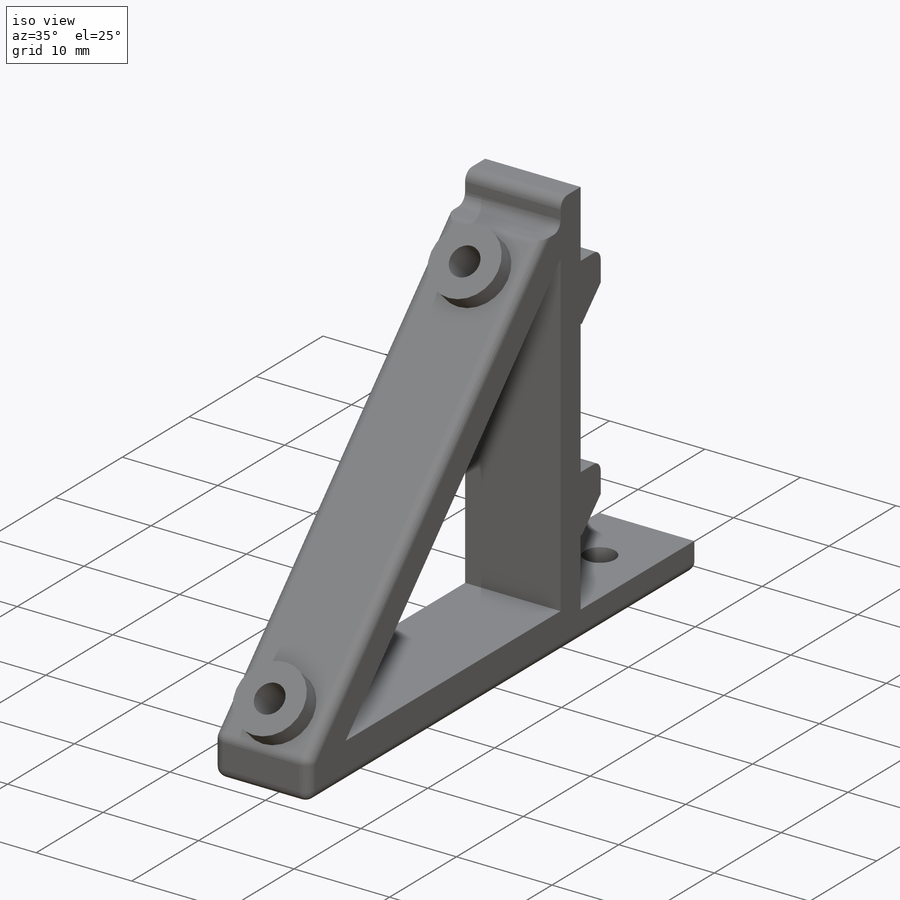
[diagram: iso view]
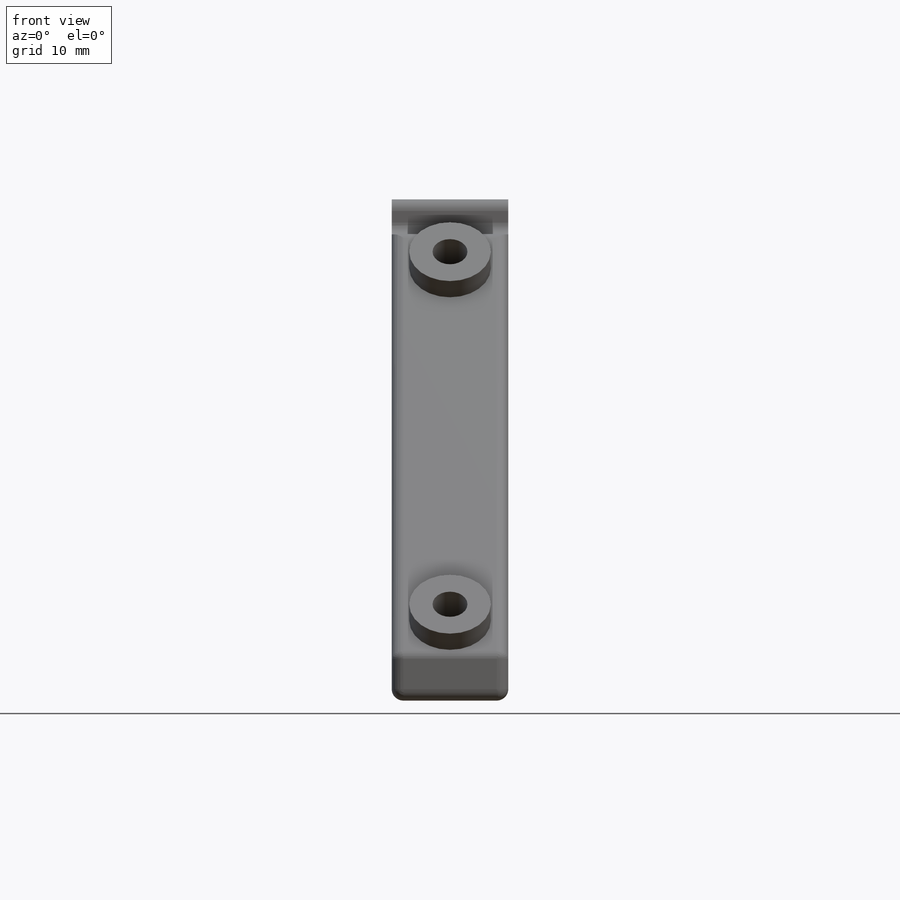
[diagram: front view]
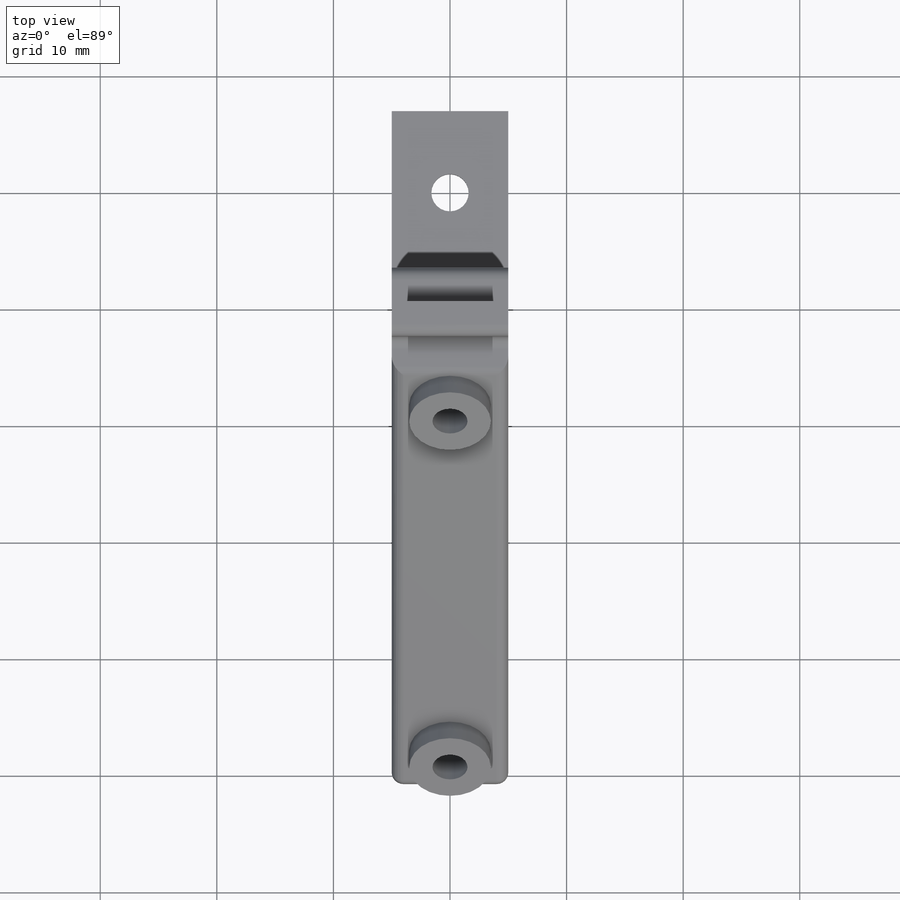
[diagram: top view]
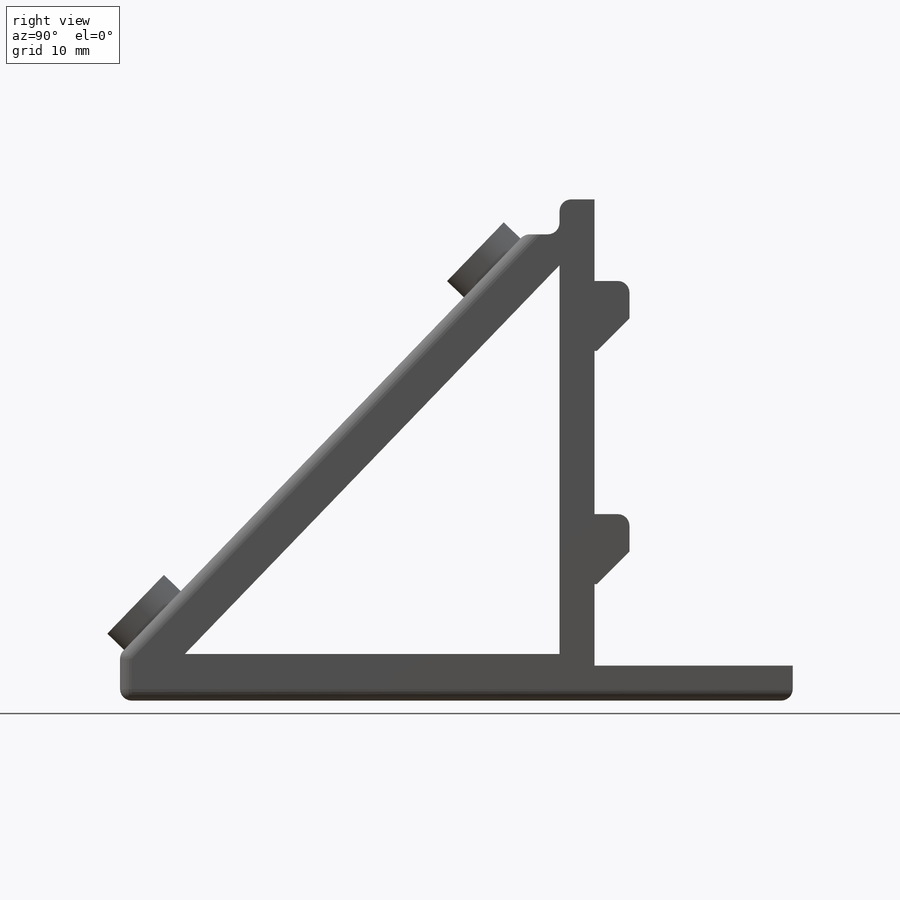
[diagram: right view]
SOLIDWORKS PART (.sldprt)
format: sldprt  version: not decoded by parser v0  size: 363,008 bytes
history: native  units: mm
features: sketch x9, extrude x5, cut_extrude x4, material x1, chamfer x1, fillet x1 (+13 scaffold rows collapsed)
feature tree (34):
  scaffold x13  (default folders/planes/origin — collapsed)
  material  "Material <not specified>"
  sketch  "Sketch1"  dims[D1=10.0mm D2=20.0mm]
  extrude  "Boss-Extrude1"  Depth=3mm
  sketch  "Sketch2"  dims[D1=3.2mm]
  cut_extrude  "Cut-Extrude1"  [1 undecoded]
  sketch  "Sketch3"  dims[D1=6.2mm]
  cut_extrude  "Cut-Extrude2"  Depth=2mm
  sketch  "Sketch4"  dims[D1=40.0mm]
  extrude  "Boss-Extrude2"  Depth=3mm
  sketch  "Sketch5"  dims[D1=6.0mm]
  extrude  "Boss-Extrude3"  Depth=3mm
  chamfer  "Chamfer1"  Distance=2.8mm Angle=45deg
  sketch  "Sketch6"  dims[c1.D1=54.0mm c1.D2=2.0mm c2.D1=50.0mm c2.D2=4.0mm c2.D3=3.0mm c2.D4=3.0mm c2.D5=~32.496154mm c3.D5=~46.05448deg c3.D6=4.0mm c3.D7=~30.202148mm c4.D6=4.0mm]
  extrude  "Boss-Extrude4"  [1 undecoded]
  sketch  "Sketch7"  dims[D1=7.0mm D2=42.0mm]
  extrude  "Boss-Extrude5"  Depth=2mm
  sketch  "Sketch10"  dims[D1=3.0mm]
  cut_extrude  "Cut-Extrude6"  [1 undecoded]
  fillet  "Fillet2"  Radius=1mm
  sketch  "Sketch8"  dims[D1=3.0mm]
  cut_extrude  "Cut-Extrude4"  [1 undecoded]
decode coverage: 16 of 20 modeling features carry decoded parameters
note: ~ marks probable driven/reference dimensions
note: 4 parameter values undecoded
summary: no parameter record found for 4 features
note: suppression state not decoded; provenance and decode notes live in map.json
